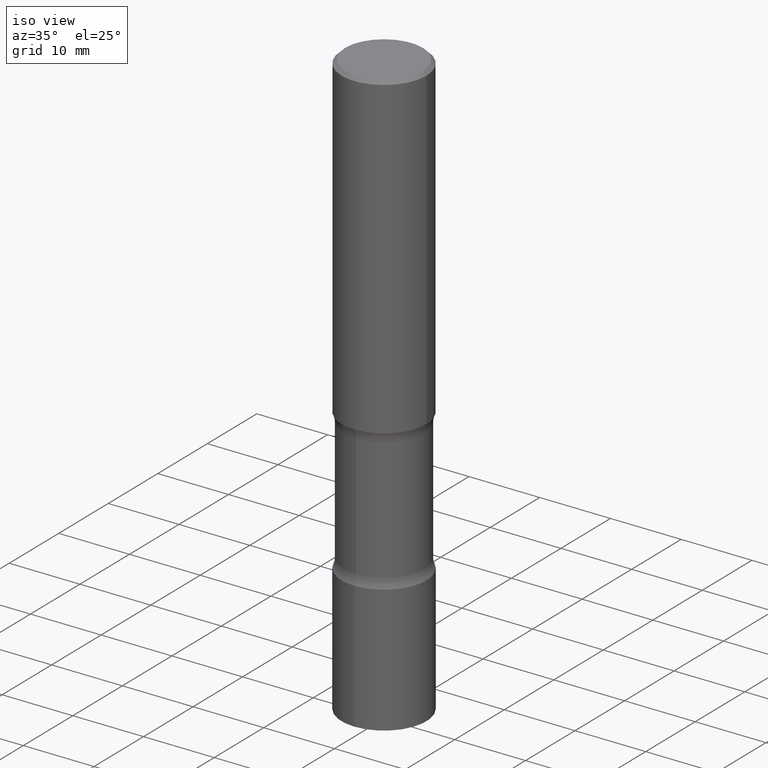
[diagram: clean part render]
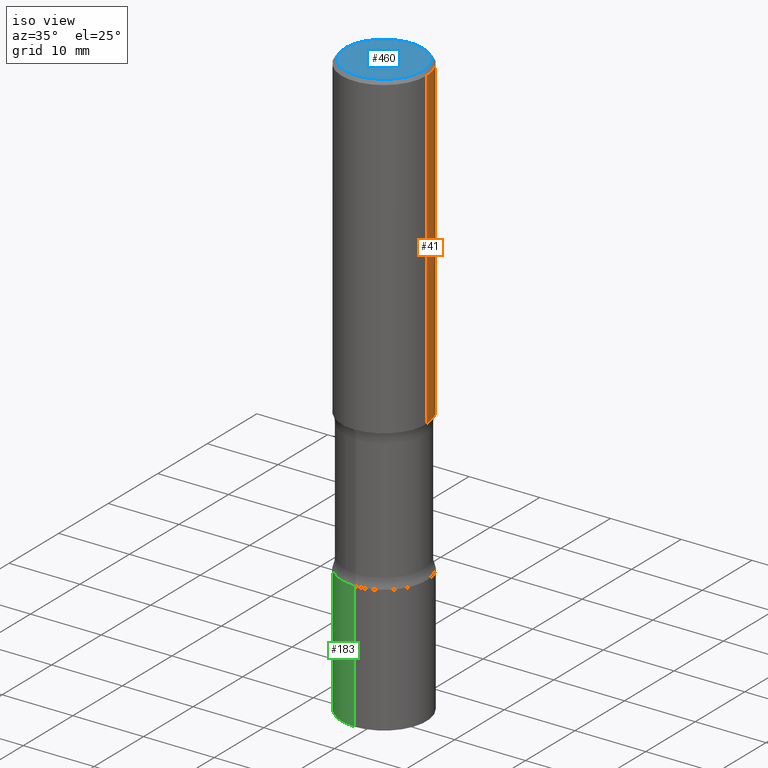
[diagram: same view with three faces highlighted in distinct colors, each labeled with its STEP entity id]
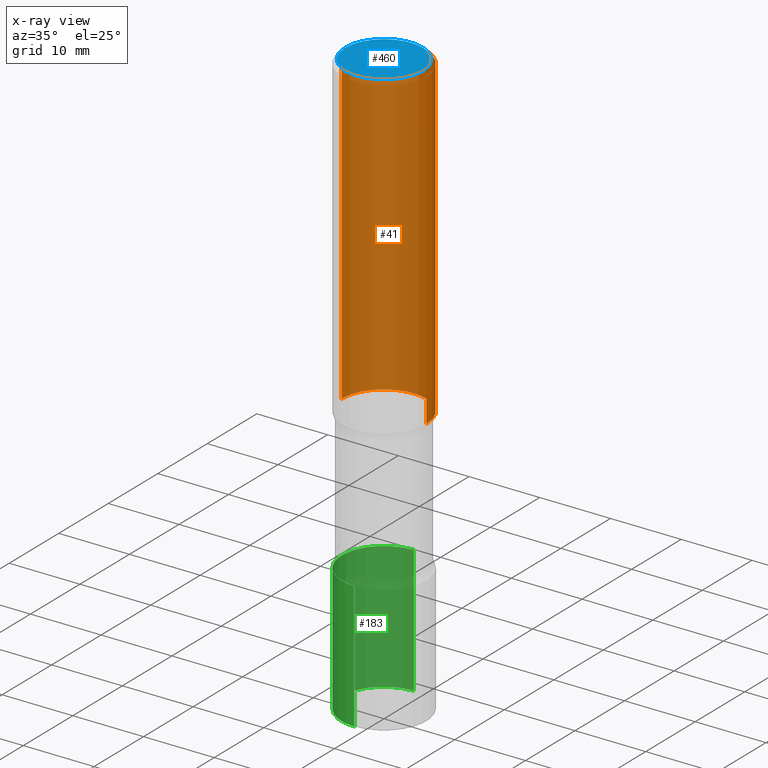
[diagram: x-ray of the same camera — body ghosted, the three highlighted faces saturated]
A machine part, iso view with three faces highlighted in distinct colors.
The next image is the same camera in x-ray (body ghosted, the three faces saturated) — at least one of them is partly hidden behind the body in this view.
Their STEP definitions:

[orange] entity #41 — the highlighted cylindrical surface (partial cylindrical patch) has radius 5.9995 mm, axis along (-0, 0, 1).
#8 = DIRECTION ( 'NONE',  ( 1.000000000000000000, -6.982962677686266711E-15, 4.876176775795935793E-29 ) ) ;
#15 = CYLINDRICAL_SURFACE ( 'NONE', #445, 0.2361999999999998545 ) ;
#18 = DIRECTION ( 'NONE',  ( -2.445468806185136597E-29, 3.491481338843145583E-15, 1.000000000000000000 ) ) ;
#30 = CIRCLE ( 'NONE', #300, 0.2361999999999997712 ) ;
#38 = VECTOR ( 'NONE', #110, 39.37007874015748143 ) ;
#41 = ADVANCED_FACE ( 'NONE', ( #253 ), #15, .T. ) ;
#59 = CARTESIAN_POINT ( 'NONE',  ( 0.2361999999999997712, -1.690279253850497193E-15, -0.02000000000000006981 ) ) ;
#66 = DIRECTION ( 'NONE',  ( 1.000000000000000000, -6.982962677686266711E-15, 0.000000000000000000 ) ) ;
#69 = CARTESIAN_POINT ( 'NONE',  ( -0.2361999999999997712, 1.579546157692631452E-15, -0.02000000000000006981 ) ) ;
#98 = CARTESIAN_POINT ( 'NONE',  ( 0.2361999999999999378, -7.834884124364012517E-15, -1.771600000000000064 ) ) ;
#102 = DIRECTION ( 'NONE',  ( 1.000000000000000000, -6.982962677686266711E-15, 0.000000000000000000 ) ) ;
#106 = ORIENTED_EDGE ( 'NONE', *, *, #354, .F. ) ;
#110 = DIRECTION ( 'NONE',  ( -2.445468806185136877E-29, 3.491481338843145188E-15, 1.000000000000000000 ) ) ;
#118 = ORIENTED_EDGE ( 'NONE', *, *, #228, .T. ) ;
#134 = AXIS2_PLACEMENT_3D ( 'NONE', #457, #18, #102 ) ;
#135 = VECTOR ( 'NONE', #197, 39.37007874015748143 ) ;
#161 = DIRECTION ( 'NONE',  ( -2.445468806185136597E-29, 3.491481338843145583E-15, 1.000000000000000000 ) ) ;
#169 = LINE ( 'NONE', #292, #135 ) ;
#188 = CARTESIAN_POINT ( 'NONE',  ( -0.2361999999999998545, 1.678301941865355605E-15, -1.161852468318208056E-29 ) ) ;
#197 = DIRECTION ( 'NONE',  ( -2.445468806185136877E-29, 3.491481338843145188E-15, 1.000000000000000000 ) ) ;
#199 = VERTEX_POINT ( 'NONE', #98 ) ;
#225 = VERTEX_POINT ( 'NONE', #59 ) ;
#228 = EDGE_CURVE ( 'NONE', #199, #393, #289, .T. ) ;
#235 = EDGE_LOOP ( 'NONE', ( #118, #397, #106, #478 ) ) ;
#245 = EDGE_CURVE ( 'NONE', #393, #273, #427, .T. ) ;
#253 = FACE_OUTER_BOUND ( 'NONE', #235, .T. ) ;
#273 = VERTEX_POINT ( 'NONE', #69 ) ;
#286 = CARTESIAN_POINT ( 'NONE',  ( 0.000000000000000000, 0.000000000000000000, 0.000000000000000000 ) ) ;
#289 = CIRCLE ( 'NONE', #134, 0.2361999999999999378 ) ;
#292 = CARTESIAN_POINT ( 'NONE',  ( 0.2361999999999998545, -1.649375784469495145E-15, 1.151752954442999387E-29 ) ) ;
#300 = AXIS2_PLACEMENT_3D ( 'NONE', #371, #161, #66 ) ;
#354 = EDGE_CURVE ( 'NONE', #225, #273, #30, .T. ) ;
#371 = CARTESIAN_POINT ( 'NONE',  ( 4.890937612370289799E-31, -6.982962677686315028E-17, -0.02000000000000006981 ) ) ;
#393 = VERTEX_POINT ( 'NONE', #475 ) ;
#397 = ORIENTED_EDGE ( 'NONE', *, *, #245, .T. ) ;
#413 = DIRECTION ( 'NONE',  ( -2.445468806185136597E-29, 3.491481338843145583E-15, 1.000000000000000000 ) ) ;
#427 = LINE ( 'NONE', #188, #38 ) ;
#429 = EDGE_CURVE ( 'NONE', #199, #225, #169, .T. ) ;
#445 = AXIS2_PLACEMENT_3D ( 'NONE', #286, #413, #8 ) ;
#457 = CARTESIAN_POINT ( 'NONE',  ( 4.332392537037588203E-29, -6.185508339894515992E-15, -1.771600000000000064 ) ) ;
#475 = CARTESIAN_POINT ( 'NONE',  ( -0.2361999999999999378, -1.449367041470333251E-15, -1.771600000000000064 ) ) ;
#478 = ORIENTED_EDGE ( 'NONE', *, *, #429, .F. ) ;

[blue] entity #460 — the highlighted planar face has unit normal (0, -0, -1).
#2 = CARTESIAN_POINT ( 'NONE',  ( 0.2161999999999997257, -1.586759460484350213E-15, -1.707404996039081677E-17 ) ) ;
#5 = CARTESIAN_POINT ( 'NONE',  ( 4.175405657340879278E-46, -5.961372681521788801E-32, -1.707404996040164512E-17 ) ) ;
#6 = DIRECTION ( 'NONE',  ( 1.000000000000000000, -6.982962677686267499E-15, 4.875778670202491993E-29 ) ) ;
#7 = AXIS2_PLACEMENT_3D ( 'NONE', #5, #330, #170 ) ;
#42 = CARTESIAN_POINT ( 'NONE',  ( -0.2161999999999997257, 1.544631344304200197E-15, -1.707404996041232555E-17 ) ) ;
#49 = AXIS2_PLACEMENT_3D ( 'NONE', #120, #275, #283 ) ;
#77 = EDGE_CURVE ( 'NONE', #362, #467, #383, .T. ) ;
#85 = DIRECTION ( 'NONE',  ( -2.445468806185136597E-29, 3.491481338843145583E-15, 1.000000000000000000 ) ) ;
#88 = ORIENTED_EDGE ( 'NONE', *, *, #77, .T. ) ;
#120 = CARTESIAN_POINT ( 'NONE',  ( 1.509716530915768746E-15, 0.2161999999999997257, -7.633952904380879871E-16 ) ) ;
#151 = PLANE ( 'NONE',  #49 ) ;
#170 = DIRECTION ( 'NONE',  ( 1.000000000000000000, -6.982962677686267499E-15, 4.875778670202491993E-29 ) ) ;
#236 = AXIS2_PLACEMENT_3D ( 'NONE', #441, #85, #6 ) ;
#238 = ORIENTED_EDGE ( 'NONE', *, *, #474, .T. ) ;
#275 = DIRECTION ( 'NONE',  ( 2.438088387897960049E-29, -3.491481338843145188E-15, -1.000000000000000000 ) ) ;
#283 = DIRECTION ( 'NONE',  ( -1.000000000000000000, 6.982962677686265922E-15, -4.876176775795935793E-29 ) ) ;
#330 = DIRECTION ( 'NONE',  ( -2.445468806185136597E-29, 3.491481338843145583E-15, 1.000000000000000000 ) ) ;
#362 = VERTEX_POINT ( 'NONE', #42 ) ;
#383 = CIRCLE ( 'NONE', #7, 0.2161999999999997257 ) ;
#436 = FACE_OUTER_BOUND ( 'NONE', #443, .T. ) ;
#441 = CARTESIAN_POINT ( 'NONE',  ( 4.175405657340879278E-46, -5.961372681521788801E-32, -1.707404996040164512E-17 ) ) ;
#443 = EDGE_LOOP ( 'NONE', ( #88, #238 ) ) ;
#456 = CIRCLE ( 'NONE', #236, 0.2161999999999997257 ) ;
#460 = ADVANCED_FACE ( 'NONE', ( #436 ), #151, .F. ) ;
#467 = VERTEX_POINT ( 'NONE', #2 ) ;
#474 = EDGE_CURVE ( 'NONE', #467, #362, #456, .T. ) ;

[green] entity #183 — the highlighted cylindrical surface (partial cylindrical patch) has radius 5.9995 mm, axis along (-0, 0, 1).
#1 = VERTEX_POINT ( 'NONE', #46 ) ;
#24 = EDGE_LOOP ( 'NONE', ( #387, #136, #426, #159 ) ) ;
#39 = AXIS2_PLACEMENT_3D ( 'NONE', #82, #132, #448 ) ;
#46 = CARTESIAN_POINT ( 'NONE',  ( 1.678301941865427392E-15, 0.2361999999999885858, -3.267700000000001381 ) ) ;
#55 = CIRCLE ( 'NONE', #348, 0.2361999999999999933 ) ;
#56 = LINE ( 'NONE', #140, #155 ) ;
#58 = VECTOR ( 'NONE', #490, 39.37007874015748143 ) ;
#61 = EDGE_CURVE ( 'NONE', #1, #196, #55, .T. ) ;
#65 = DIRECTION ( 'NONE',  ( -6.982962677686265922E-15, -1.000000000000000000, 3.494942722065785173E-15 ) ) ;
#82 = CARTESIAN_POINT ( 'NONE',  ( 6.251769390375393387E-29, -8.943558425766346826E-15, -2.559000000000000163 ) ) ;
#132 = DIRECTION ( 'NONE',  ( -2.443051735199450361E-29, 3.494942722065785173E-15, 1.000000000000000000 ) ) ;
#136 = ORIENTED_EDGE ( 'NONE', *, *, #61, .T. ) ;
#140 = CARTESIAN_POINT ( 'NONE',  ( -1.649375784469495934E-15, -0.2361999999999999933, 8.255054709519384761E-16 ) ) ;
#155 = VECTOR ( 'NONE', #386, 39.37007874015748143 ) ;
#159 = ORIENTED_EDGE ( 'NONE', *, *, #343, .F. ) ;
#165 = CIRCLE ( 'NONE', #39, 0.2361999999999999655 ) ;
#183 = ADVANCED_FACE ( 'NONE', ( #303 ), #186, .T. ) ;
#186 = CYLINDRICAL_SURFACE ( 'NONE', #339, 0.2361999999999999933 ) ;
#196 = VERTEX_POINT ( 'NONE', #493 ) ;
#211 = EDGE_CURVE ( 'NONE', #196, #319, #56, .T. ) ;
#246 = DIRECTION ( 'NONE',  ( -2.443051735199450361E-29, 3.494942722065785173E-15, 1.000000000000000000 ) ) ;
#252 = LINE ( 'NONE', #488, #58 ) ;
#303 = FACE_OUTER_BOUND ( 'NONE', #24, .T. ) ;
#304 = CARTESIAN_POINT ( 'NONE',  ( -1.649375784469433022E-15, -0.2362000000000089028, -2.558999999999999275 ) ) ;
#319 = VERTEX_POINT ( 'NONE', #304 ) ;
#339 = AXIS2_PLACEMENT_3D ( 'NONE', #389, #346, #65 ) ;
#343 = EDGE_CURVE ( 'NONE', #359, #319, #165, .T. ) ;
#346 = DIRECTION ( 'NONE',  ( -2.443051735199450361E-29, 3.494942722065785173E-15, 1.000000000000000000 ) ) ;
#348 = AXIS2_PLACEMENT_3D ( 'NONE', #447, #246, #404 ) ;
#359 = VERTEX_POINT ( 'NONE', #361 ) ;
#361 = CARTESIAN_POINT ( 'NONE',  ( 1.678301941865435872E-15, 0.2361999999999910282, -2.559000000000001496 ) ) ;
#386 = DIRECTION ( 'NONE',  ( -2.443051735199450641E-29, 3.494942722065785173E-15, 1.000000000000000000 ) ) ;
#387 = ORIENTED_EDGE ( 'NONE', *, *, #482, .F. ) ;
#389 = CARTESIAN_POINT ( 'NONE',  ( 0.000000000000000000, 0.000000000000000000, 0.000000000000000000 ) ) ;
#404 = DIRECTION ( 'NONE',  ( -6.982962677686265922E-15, -1.000000000000000000, 4.626330217890369336E-15 ) ) ;
#426 = ORIENTED_EDGE ( 'NONE', *, *, #211, .T. ) ;
#447 = CARTESIAN_POINT ( 'NONE',  ( 7.983160155111243583E-29, -1.142042433289436647E-14, -3.267700000000000049 ) ) ;
#448 = DIRECTION ( 'NONE',  ( -6.982962677686265922E-15, -1.000000000000000000, 4.626330217890370125E-15 ) ) ;
#482 = EDGE_CURVE ( 'NONE', #1, #359, #252, .T. ) ;
#488 = CARTESIAN_POINT ( 'NONE',  ( 1.678301941865356394E-15, 0.2361999999999999933, -8.255054709519384761E-16 ) ) ;
#490 = DIRECTION ( 'NONE',  ( -2.443051735199450641E-29, 3.494942722065785173E-15, 1.000000000000000000 ) ) ;
#493 = CARTESIAN_POINT ( 'NONE',  ( -1.649375784469416061E-15, -0.2362000000000114008, -3.267699999999999161 ) ) ;